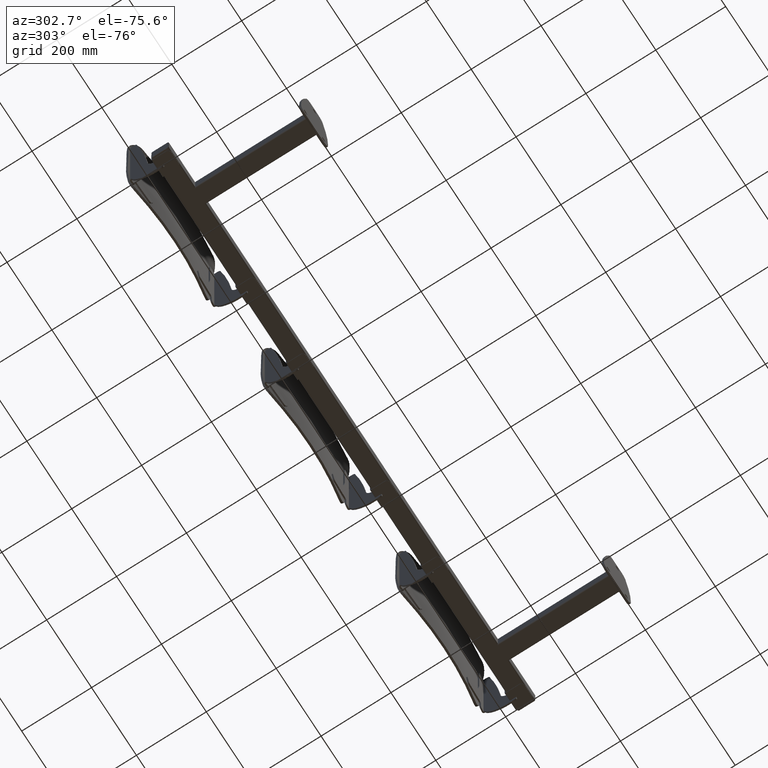
[diagram: clean part render]
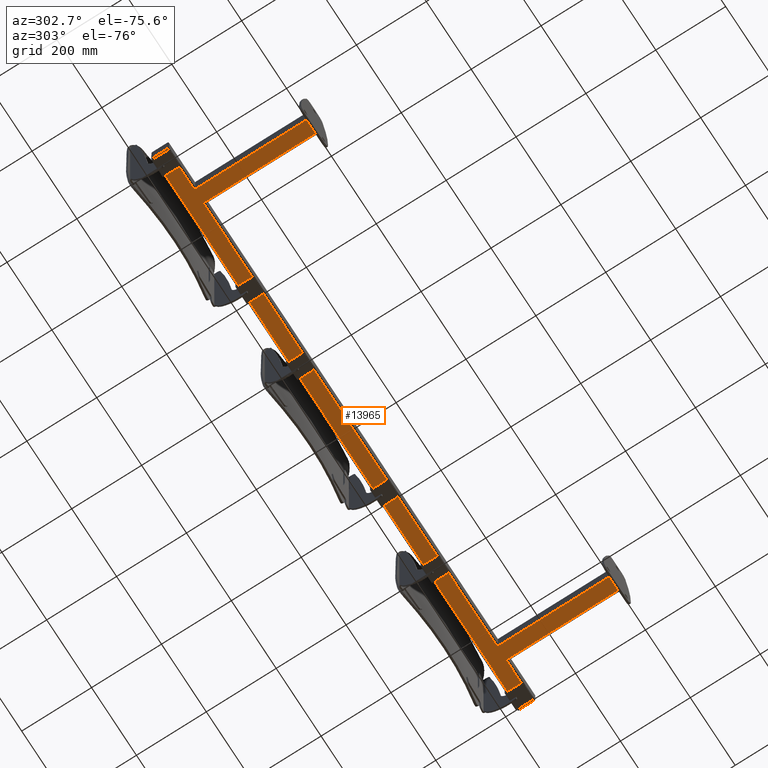
[diagram: same view with one face highlighted and labeled with its STEP entity id]
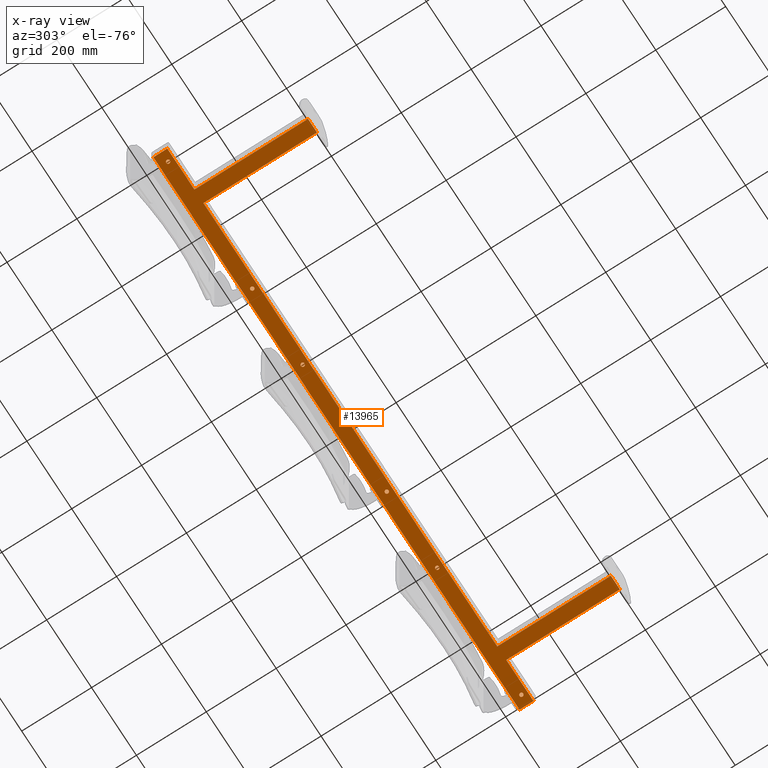
[diagram: x-ray of the same camera — body ghosted, the highlighted face saturated]
A machine part, auxiliary view. The second image highlights one B-rep face of the part: STEP entity #13965.
The next image is the same camera in x-ray: the body ghosted, the highlighted face saturated — about 0% of this face is hidden behind the body in this view.
In plain terms, the highlighted planar face has unit normal (0, 0, -1).
Its self-contained STEP definition (entity closure, byte-faithful):
#2309 = AXIS2_PLACEMENT_3D ( 'NONE', #6476, #6477, #6478 ) ;
#2310 = AXIS2_PLACEMENT_3D ( 'NONE', #6481, #6482, #6483 ) ;
#2311 = AXIS2_PLACEMENT_3D ( 'NONE', #6486, #6487, #6488 ) ;
#2341 = AXIS2_PLACEMENT_3D ( 'NONE', #6602, #6599, #6606 ) ;
#2415 = AXIS2_PLACEMENT_3D ( 'NONE', #9649, #9650, #9651 ) ;
#2417 = AXIS2_PLACEMENT_3D ( 'NONE', #9660, #9661, #9662 ) ;
#2419 = AXIS2_PLACEMENT_3D ( 'NONE', #9669, #9670, #9671 ) ;
#2421 = AXIS2_PLACEMENT_3D ( 'NONE', #9680, #9681, #9682 ) ;
#2436 = AXIS2_PLACEMENT_3D ( 'NONE', #4965, #4967, #4969 ) ;
#2437 = AXIS2_PLACEMENT_3D ( 'NONE', #4974, #4976, #4978 ) ;
#2438 = AXIS2_PLACEMENT_3D ( 'NONE', #4984, #4986, #4988 ) ;
#2443 = AXIS2_PLACEMENT_3D ( 'NONE', #5087, #5089, #5091 ) ;
#2445 = AXIS2_PLACEMENT_3D ( 'NONE', #5115, #5117, #5119 ) ;
#3930 = EDGE_LOOP ( 'NONE', ( #10360, #10380 ) ) ;
#4095 = VERTEX_POINT ( 'NONE', #11253 ) ;
#4921 = CARTESIAN_POINT ( 'NONE',  ( -816.0000000000000000, 371.0000000000000000, -25.00000000000000000 ) ) ;
#4951 = CARTESIAN_POINT ( 'NONE',  ( -818.0000000000000000, 331.0000000000000000, -25.00000000000000000 ) ) ;
#4954 = DIRECTION ( 'NONE',  ( -1.000000000000000000, -0.0000000000000000000, -0.0000000000000000000 ) ) ;
#4956 = DIRECTION ( 'NONE',  ( -0.0000000000000000000, 1.000000000000000000, -0.0000000000000000000 ) ) ;
#4965 = CARTESIAN_POINT ( 'NONE',  ( -412.5000000000000600, 347.0000000000000000, -25.00000000000000000 ) ) ;
#4967 = DIRECTION ( 'NONE',  ( 0.0000000000000000000, 0.0000000000000000000, 1.000000000000000000 ) ) ;
#4969 = DIRECTION ( 'NONE',  ( 1.000000000000000000, 0.0000000000000000000, 0.0000000000000000000 ) ) ;
#4974 = CARTESIAN_POINT ( 'NONE',  ( 412.5000000000000600, 347.0000000000000000, -25.00000000000000000 ) ) ;
#4976 = DIRECTION ( 'NONE',  ( 0.0000000000000000000, 0.0000000000000000000, 1.000000000000000000 ) ) ;
#4978 = DIRECTION ( 'NONE',  ( -1.000000000000000000, 0.0000000000000000000, 0.0000000000000000000 ) ) ;
#4984 = CARTESIAN_POINT ( 'NONE',  ( 187.5000000000000000, 347.0000000000000000, -25.00000000000000000 ) ) ;
#4986 = DIRECTION ( 'NONE',  ( 0.0000000000000000000, 0.0000000000000000000, 1.000000000000000000 ) ) ;
#4988 = DIRECTION ( 'NONE',  ( 1.000000000000000000, 0.0000000000000000000, 0.0000000000000000000 ) ) ;
#4996 = CARTESIAN_POINT ( 'NONE',  ( 700.0000000000002300, 331.0000000000000000, -25.00000000000000000 ) ) ;
#4999 = DIRECTION ( 'NONE',  ( -1.000000000000000000, -0.0000000000000000000, -0.0000000000000000000 ) ) ;
#5001 = CARTESIAN_POINT ( 'NONE',  ( 695.0000000000001100, 6.000000000000002700, -25.00000000000000000 ) ) ;
#5004 = DIRECTION ( 'NONE',  ( -3.469446951953614200E-016, -1.000000000000000000, -0.0000000000000000000 ) ) ;
#5006 = CARTESIAN_POINT ( 'NONE',  ( 650.0000000000000000, 6.000000000000000900, -25.00000000000000000 ) ) ;
#5009 = DIRECTION ( 'NONE',  ( 1.000000000000000000, 0.0000000000000000000, 0.0000000000000000000 ) ) ;
#5011 = CARTESIAN_POINT ( 'NONE',  ( 654.9999999999998900, 326.0000000000000000, -25.00000000000000000 ) ) ;
#5014 = DIRECTION ( 'NONE',  ( -3.469446951953614200E-016, 1.000000000000000000, -0.0000000000000000000 ) ) ;
#5016 = CARTESIAN_POINT ( 'NONE',  ( -649.9999999999998900, 331.0000000000000000, -25.00000000000000000 ) ) ;
#5019 = DIRECTION ( 'NONE',  ( -1.000000000000000000, -0.0000000000000000000, -0.0000000000000000000 ) ) ;
#5021 = CARTESIAN_POINT ( 'NONE',  ( -655.0000000000000000, 6.000000000000001800, -25.00000000000000000 ) ) ;
#5024 = DIRECTION ( 'NONE',  ( -3.469446951953614200E-016, -1.000000000000000000, -0.0000000000000000000 ) ) ;
#5026 = CARTESIAN_POINT ( 'NONE',  ( -695.0000000000002300, 326.0000000000000000, -25.00000000000000000 ) ) ;
#5029 = DIRECTION ( 'NONE',  ( -3.469446951953614200E-016, 1.000000000000000000, -0.0000000000000000000 ) ) ;
#5087 = CARTESIAN_POINT ( 'NONE',  ( 187.5000000000000000, 347.0000000000000000, -25.00000000000000000 ) ) ;
#5089 = DIRECTION ( 'NONE',  ( 0.0000000000000000000, 0.0000000000000000000, 1.000000000000000000 ) ) ;
#5091 = DIRECTION ( 'NONE',  ( 1.000000000000000000, 0.0000000000000000000, 0.0000000000000000000 ) ) ;
#5115 = CARTESIAN_POINT ( 'NONE',  ( -187.5000000000000000, 347.0000000000000000, -25.00000000000000000 ) ) ;
#5117 = DIRECTION ( 'NONE',  ( 0.0000000000000000000, 0.0000000000000000000, 1.000000000000000000 ) ) ;
#5119 = DIRECTION ( 'NONE',  ( 1.000000000000000000, 0.0000000000000000000, 0.0000000000000000000 ) ) ;
#5723 = CARTESIAN_POINT ( 'NONE',  ( -654.9999999999998900, 331.0000000000000000, -25.00000000000000000 ) ) ;
#5724 = CARTESIAN_POINT ( 'NONE',  ( 654.9999999999998900, 331.0000000000000000, -25.00000000000000000 ) ) ;
#5733 = CARTESIAN_POINT ( 'NONE',  ( 695.0000000000002300, 331.0000000000000000, -25.00000000000000000 ) ) ;
#5735 = CARTESIAN_POINT ( 'NONE',  ( -695.0000000000002300, 331.0000000000000000, -25.00000000000000000 ) ) ;
#6161 = EDGE_LOOP ( 'NONE', ( #10357, #10377 ) ) ;
#6162 = EDGE_LOOP ( 'NONE', ( #10385, #10368 ) ) ;
#6163 = EDGE_LOOP ( 'NONE', ( #10378, #10373, #10386, #10367, #10369, #10374, #10362, #10359, #10388, #10363, #10376, #10389 ) ) ;
#6167 = EDGE_LOOP ( 'NONE', ( #10384, #10375 ) ) ;
#6169 = EDGE_LOOP ( 'NONE', ( #10370, #10382 ) ) ;
#6171 = EDGE_LOOP ( 'NONE', ( #10379, #10358 ) ) ;
#6476 = CARTESIAN_POINT ( 'NONE',  ( -187.5000000000000000, 347.0000000000000000, -25.00000000000000000 ) ) ;
#6477 = DIRECTION ( 'NONE',  ( 0.0000000000000000000, 0.0000000000000000000, 1.000000000000000000 ) ) ;
#6478 = DIRECTION ( 'NONE',  ( 1.000000000000000000, 0.0000000000000000000, 0.0000000000000000000 ) ) ;
#6479 = CARTESIAN_POINT ( 'NONE',  ( 818.0000000000000000, 371.0000000000000000, -25.00000000000000000 ) ) ;
#6480 = DIRECTION ( 'NONE',  ( 1.000000000000000000, -0.0000000000000000000, -0.0000000000000000000 ) ) ;
#6481 = CARTESIAN_POINT ( 'NONE',  ( 787.5000000000001100, 347.0000000000000000, -25.00000000000000000 ) ) ;
#6482 = DIRECTION ( 'NONE',  ( 0.0000000000000000000, 0.0000000000000000000, 1.000000000000000000 ) ) ;
#6483 = DIRECTION ( 'NONE',  ( -1.000000000000000000, 0.0000000000000000000, 0.0000000000000000000 ) ) ;
#6486 = CARTESIAN_POINT ( 'NONE',  ( -787.5000000000001100, 347.0000000000000000, -25.00000000000000000 ) ) ;
#6487 = DIRECTION ( 'NONE',  ( 0.0000000000000000000, 0.0000000000000000000, 1.000000000000000000 ) ) ;
#6488 = DIRECTION ( 'NONE',  ( 1.000000000000000000, 0.0000000000000000000, 0.0000000000000000000 ) ) ;
#6489 = CARTESIAN_POINT ( 'NONE',  ( 816.0000000000000000, 331.0000000000000000, -25.00000000000000000 ) ) ;
#6490 = DIRECTION ( 'NONE',  ( -0.0000000000000000000, -1.000000000000000000, -0.0000000000000000000 ) ) ;
#6496 = CARTESIAN_POINT ( 'NONE',  ( -700.0000000000001100, 6.000000000000000900, -25.00000000000000000 ) ) ;
#6497 = DIRECTION ( 'NONE',  ( 1.000000000000000000, -1.734723475976805600E-017, 0.0000000000000000000 ) ) ;
#6599 = DIRECTION ( 'NONE',  ( 0.0000000000000000000, 0.0000000000000000000, -1.000000000000000000 ) ) ;
#6602 = CARTESIAN_POINT ( 'NONE',  ( 0.0000000000000000000, 0.0000000000000000000, -25.00000000000000000 ) ) ;
#6604 = PLANE ( 'NONE',  #2341 ) ;
#6606 = DIRECTION ( 'NONE',  ( -1.000000000000000000, 0.0000000000000000000, -0.0000000000000000000 ) ) ;
#7732 = VERTEX_POINT ( 'NONE', #5724 ) ;
#7734 = VERTEX_POINT ( 'NONE', #5723 ) ;
#7735 = VERTEX_POINT ( 'NONE', #5733 ) ;
#7737 = VERTEX_POINT ( 'NONE', #5735 ) ;
#8395 = CIRCLE ( 'NONE', #2415, 5.250000000000032000 ) ;
#8425 = CIRCLE ( 'NONE', #2417, 5.249999999999976900 ) ;
#8431 = CIRCLE ( 'NONE', #2419, 5.250000000000032000 ) ;
#8437 = CIRCLE ( 'NONE', #2421, 5.249999999999976900 ) ;
#8492 = LINE ( 'NONE', #4921, #8507 ) ;
#8502 = LINE ( 'NONE', #4951, #8505 ) ;
#8505 = VECTOR ( 'NONE', #4954, 1000.000000000000000 ) ;
#8506 = CIRCLE ( 'NONE', #2436, 5.250000000000032000 ) ;
#8507 = VECTOR ( 'NONE', #4956, 1000.000000000000000 ) ;
#8508 = CIRCLE ( 'NONE', #2437, 5.250000000000032000 ) ;
#8509 = CIRCLE ( 'NONE', #2438, 5.250000000000004400 ) ;
#8512 = LINE ( 'NONE', #4996, #8515 ) ;
#8514 = LINE ( 'NONE', #5001, #8517 ) ;
#8515 = VECTOR ( 'NONE', #4999, 1000.000000000000000 ) ;
#8516 = LINE ( 'NONE', #5006, #8519 ) ;
#8517 = VECTOR ( 'NONE', #5004, 1000.000000000000000 ) ;
#8518 = LINE ( 'NONE', #5011, #8877 ) ;
#8519 = VECTOR ( 'NONE', #5009, 1000.000000000000000 ) ;
#8877 = VECTOR ( 'NONE', #5014, 1000.000000000000000 ) ;
#8993 = VERTEX_POINT ( 'NONE', #9277 ) ;
#8996 = VERTEX_POINT ( 'NONE', #9280 ) ;
#9000 = VERTEX_POINT ( 'NONE', #9284 ) ;
#9001 = VERTEX_POINT ( 'NONE', #9285 ) ;
#9004 = VERTEX_POINT ( 'NONE', #9288 ) ;
#9005 = VERTEX_POINT ( 'NONE', #9289 ) ;
#9006 = VERTEX_POINT ( 'NONE', #9290 ) ;
#9017 = VERTEX_POINT ( 'NONE', #9301 ) ;
#9019 = VERTEX_POINT ( 'NONE', #9303 ) ;
#9029 = VERTEX_POINT ( 'NONE', #9313 ) ;
#9036 = VERTEX_POINT ( 'NONE', #9320 ) ;
#9041 = VERTEX_POINT ( 'NONE', #9325 ) ;
#9042 = VERTEX_POINT ( 'NONE', #9326 ) ;
#9049 = VERTEX_POINT ( 'NONE', #9333 ) ;
#9052 = VERTEX_POINT ( 'NONE', #9336 ) ;
#9056 = VERTEX_POINT ( 'NONE', #9340 ) ;
#9066 = VERTEX_POINT ( 'NONE', #9350 ) ;
#9277 = CARTESIAN_POINT ( 'NONE',  ( -782.2500000000001100, 347.0000000000000000, -25.00000000000000000 ) ) ;
#9280 = CARTESIAN_POINT ( 'NONE',  ( -192.7500000000000000, 347.0000000000000000, -25.00000000000000000 ) ) ;
#9284 = CARTESIAN_POINT ( 'NONE',  ( -695.0000000000001100, 6.000000000000000900, -25.00000000000000000 ) ) ;
#9285 = CARTESIAN_POINT ( 'NONE',  ( -407.2500000000000000, 347.0000000000000000, -25.00000000000000000 ) ) ;
#9288 = CARTESIAN_POINT ( 'NONE',  ( 417.7500000000000600, 347.0000000000000000, -25.00000000000000000 ) ) ;
#9289 = CARTESIAN_POINT ( 'NONE',  ( -417.7500000000000600, 347.0000000000000000, -25.00000000000000000 ) ) ;
#9290 = CARTESIAN_POINT ( 'NONE',  ( 192.7500000000000000, 347.0000000000000000, -25.00000000000000000 ) ) ;
#9301 = CARTESIAN_POINT ( 'NONE',  ( -182.2500000000000000, 347.0000000000000000, -25.00000000000000000 ) ) ;
#9303 = CARTESIAN_POINT ( 'NONE',  ( 182.2500000000000000, 347.0000000000000000, -25.00000000000000000 ) ) ;
#9313 = CARTESIAN_POINT ( 'NONE',  ( 655.0000000000000000, 6.000000000000000900, -25.00000000000000000 ) ) ;
#9320 = CARTESIAN_POINT ( 'NONE',  ( -792.7500000000001100, 347.0000000000000000, -25.00000000000000000 ) ) ;
#9325 = CARTESIAN_POINT ( 'NONE',  ( 782.2500000000001100, 347.0000000000000000, -25.00000000000000000 ) ) ;
#9326 = CARTESIAN_POINT ( 'NONE',  ( -816.0000000000000000, 371.0000000000000000, -25.00000000000000000 ) ) ;
#9333 = CARTESIAN_POINT ( 'NONE',  ( 407.2500000000000000, 347.0000000000000000, -25.00000000000000000 ) ) ;
#9336 = CARTESIAN_POINT ( 'NONE',  ( 816.0000000000000000, 371.0000000000000000, -25.00000000000000000 ) ) ;
#9340 = CARTESIAN_POINT ( 'NONE',  ( 792.7500000000001100, 347.0000000000000000, -25.00000000000000000 ) ) ;
#9350 = CARTESIAN_POINT ( 'NONE',  ( -655.0000000000000000, 6.000000000000000000, -25.00000000000000000 ) ) ;
#9591 = CARTESIAN_POINT ( 'NONE',  ( -816.0000000000000000, 331.0000000000000000, -25.00000000000000000 ) ) ;
#9594 = CARTESIAN_POINT ( 'NONE',  ( 816.0000000000000000, 331.0000000000000000, -25.00000000000000000 ) ) ;
#9649 = CARTESIAN_POINT ( 'NONE',  ( 412.5000000000000600, 347.0000000000000000, -25.00000000000000000 ) ) ;
#9650 = DIRECTION ( 'NONE',  ( 0.0000000000000000000, 0.0000000000000000000, 1.000000000000000000 ) ) ;
#9651 = DIRECTION ( 'NONE',  ( -1.000000000000000000, 0.0000000000000000000, 0.0000000000000000000 ) ) ;
#9660 = CARTESIAN_POINT ( 'NONE',  ( 787.5000000000001100, 347.0000000000000000, -25.00000000000000000 ) ) ;
#9661 = DIRECTION ( 'NONE',  ( 0.0000000000000000000, 0.0000000000000000000, 1.000000000000000000 ) ) ;
#9662 = DIRECTION ( 'NONE',  ( -1.000000000000000000, 0.0000000000000000000, 0.0000000000000000000 ) ) ;
#9669 = CARTESIAN_POINT ( 'NONE',  ( -412.5000000000000600, 347.0000000000000000, -25.00000000000000000 ) ) ;
#9670 = DIRECTION ( 'NONE',  ( 0.0000000000000000000, 0.0000000000000000000, 1.000000000000000000 ) ) ;
#9671 = DIRECTION ( 'NONE',  ( 1.000000000000000000, 0.0000000000000000000, 0.0000000000000000000 ) ) ;
#9680 = CARTESIAN_POINT ( 'NONE',  ( -787.5000000000001100, 347.0000000000000000, -25.00000000000000000 ) ) ;
#9681 = DIRECTION ( 'NONE',  ( 0.0000000000000000000, 0.0000000000000000000, 1.000000000000000000 ) ) ;
#9682 = DIRECTION ( 'NONE',  ( 1.000000000000000000, 0.0000000000000000000, 0.0000000000000000000 ) ) ;
#10357 = ORIENTED_EDGE ( 'NONE', *, *, #13603, .T. ) ;
#10358 = ORIENTED_EDGE ( 'NONE', *, *, #13733, .T. ) ;
#10359 = ORIENTED_EDGE ( 'NONE', *, *, #13685, .T. ) ;
#10360 = ORIENTED_EDGE ( 'NONE', *, *, #13607, .T. ) ;
#10362 = ORIENTED_EDGE ( 'NONE', *, *, #13684, .T. ) ;
#10363 = ORIENTED_EDGE ( 'NONE', *, *, #13686, .T. ) ;
#10367 = ORIENTED_EDGE ( 'NONE', *, *, #13681, .T. ) ;
#10368 = ORIENTED_EDGE ( 'NONE', *, *, #13676, .T. ) ;
#10369 = ORIENTED_EDGE ( 'NONE', *, *, #13682, .F. ) ;
#10370 = ORIENTED_EDGE ( 'NONE', *, *, #13695, .T. ) ;
#10373 = ORIENTED_EDGE ( 'NONE', *, *, #13737, .T. ) ;
#10374 = ORIENTED_EDGE ( 'NONE', *, *, #13683, .T. ) ;
#10375 = ORIENTED_EDGE ( 'NONE', *, *, #13734, .T. ) ;
#10376 = ORIENTED_EDGE ( 'NONE', *, *, #13673, .T. ) ;
#10377 = ORIENTED_EDGE ( 'NONE', *, *, #13675, .T. ) ;
#10378 = ORIENTED_EDGE ( 'NONE', *, *, #13736, .T. ) ;
#10379 = ORIENTED_EDGE ( 'NONE', *, *, #13699, .T. ) ;
#10380 = ORIENTED_EDGE ( 'NONE', *, *, #13735, .T. ) ;
#10382 = ORIENTED_EDGE ( 'NONE', *, *, #13677, .T. ) ;
#10384 = ORIENTED_EDGE ( 'NONE', *, *, #13599, .T. ) ;
#10385 = ORIENTED_EDGE ( 'NONE', *, *, #13595, .T. ) ;
#10386 = ORIENTED_EDGE ( 'NONE', *, *, #13680, .T. ) ;
#10388 = ORIENTED_EDGE ( 'NONE', *, *, #13743, .F. ) ;
#10389 = ORIENTED_EDGE ( 'NONE', *, *, #13674, .T. ) ;
#11253 = CARTESIAN_POINT ( 'NONE',  ( 695.0000000000001100, 6.000000000000000900, -25.00000000000000000 ) ) ;
#12313 = VERTEX_POINT ( 'NONE', #9591 ) ;
#12330 = VERTEX_POINT ( 'NONE', #9594 ) ;
#13595 = EDGE_CURVE ( 'NONE', #9049, #9004, #8395, .T. ) ;
#13599 = EDGE_CURVE ( 'NONE', #9041, #9056, #8425, .T. ) ;
#13603 = EDGE_CURVE ( 'NONE', #9005, #9001, #8431, .T. ) ;
#13607 = EDGE_CURVE ( 'NONE', #9036, #8993, #8437, .T. ) ;
#13673 = EDGE_CURVE ( 'NONE', #7737, #12313, #8502, .T. ) ;
#13674 = EDGE_CURVE ( 'NONE', #12313, #9042, #8492, .T. ) ;
#13675 = EDGE_CURVE ( 'NONE', #9001, #9005, #8506, .T. ) ;
#13676 = EDGE_CURVE ( 'NONE', #9004, #9049, #8508, .T. ) ;
#13677 = EDGE_CURVE ( 'NONE', #9006, #9019, #8509, .T. ) ;
#13680 = EDGE_CURVE ( 'NONE', #12330, #7735, #8512, .T. ) ;
#13681 = EDGE_CURVE ( 'NONE', #7735, #4095, #8514, .T. ) ;
#13682 = EDGE_CURVE ( 'NONE', #9029, #4095, #8516, .T. ) ;
#13683 = EDGE_CURVE ( 'NONE', #9029, #7732, #8518, .T. ) ;
#13684 = EDGE_CURVE ( 'NONE', #7732, #7734, #14802, .T. ) ;
#13685 = EDGE_CURVE ( 'NONE', #7734, #9066, #14805, .T. ) ;
#13686 = EDGE_CURVE ( 'NONE', #9000, #7737, #14804, .T. ) ;
#13695 = EDGE_CURVE ( 'NONE', #9019, #9006, #14820, .T. ) ;
#13699 = EDGE_CURVE ( 'NONE', #8996, #9017, #14826, .T. ) ;
#13733 = EDGE_CURVE ( 'NONE', #9017, #8996, #14874, .T. ) ;
#13734 = EDGE_CURVE ( 'NONE', #9056, #9041, #14875, .T. ) ;
#13735 = EDGE_CURVE ( 'NONE', #8993, #9036, #14876, .T. ) ;
#13736 = EDGE_CURVE ( 'NONE', #9042, #9052, #14877, .T. ) ;
#13737 = EDGE_CURVE ( 'NONE', #9052, #12330, #14878, .T. ) ;
#13743 = EDGE_CURVE ( 'NONE', #9000, #9066, #14888, .T. ) ;
#13965 = ADVANCED_FACE ( 'NONE', ( #14932, #14934, #14900, #14933, #14928, #14935, #14936 ), #6604, .T. ) ;
#14802 = LINE ( 'NONE', #5016, #14803 ) ;
#14803 = VECTOR ( 'NONE', #5019, 1000.000000000000000 ) ;
#14804 = LINE ( 'NONE', #5026, #14808 ) ;
#14805 = LINE ( 'NONE', #5021, #14806 ) ;
#14806 = VECTOR ( 'NONE', #5024, 1000.000000000000000 ) ;
#14808 = VECTOR ( 'NONE', #5029, 1000.000000000000000 ) ;
#14820 = CIRCLE ( 'NONE', #2443, 5.250000000000004400 ) ;
#14826 = CIRCLE ( 'NONE', #2445, 5.250000000000004400 ) ;
#14874 = CIRCLE ( 'NONE', #2309, 5.250000000000004400 ) ;
#14875 = CIRCLE ( 'NONE', #2310, 5.249999999999976900 ) ;
#14876 = CIRCLE ( 'NONE', #2311, 5.249999999999976900 ) ;
#14877 = LINE ( 'NONE', #6479, #14879 ) ;
#14878 = LINE ( 'NONE', #6489, #14881 ) ;
#14879 = VECTOR ( 'NONE', #6480, 1000.000000000000000 ) ;
#14881 = VECTOR ( 'NONE', #6490, 1000.000000000000000 ) ;
#14888 = LINE ( 'NONE', #6496, #14890 ) ;
#14890 = VECTOR ( 'NONE', #6497, 1000.000000000000000 ) ;
#14900 = FACE_BOUND ( 'NONE', #3930, .T. ) ;
#14928 = FACE_BOUND ( 'NONE', #6161, .T. ) ;
#14932 = FACE_BOUND ( 'NONE', #6171, .T. ) ;
#14933 = FACE_OUTER_BOUND ( 'NONE', #6163, .T. ) ;
#14934 = FACE_BOUND ( 'NONE', #6167, .T. ) ;
#14935 = FACE_BOUND ( 'NONE', #6162, .T. ) ;
#14936 = FACE_BOUND ( 'NONE', #6169, .T. ) ;